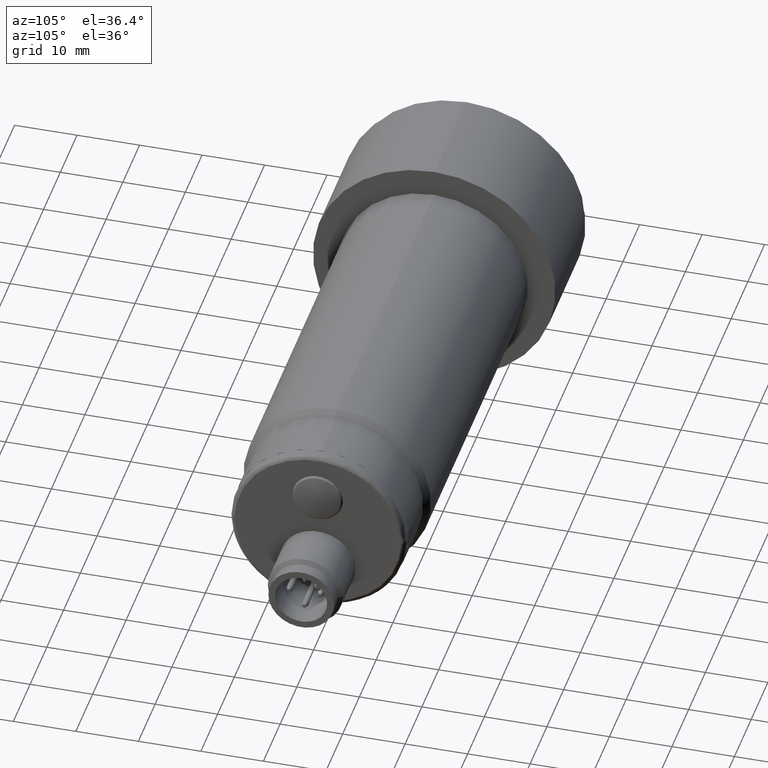
[diagram: clean part render]
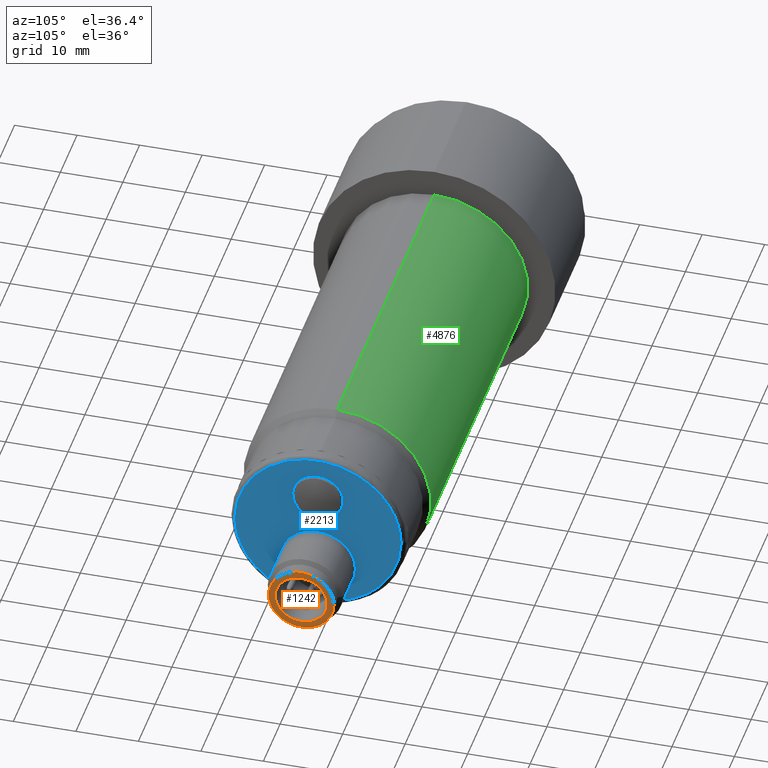
[diagram: same view with three faces highlighted in distinct colors, each labeled with its STEP entity id]
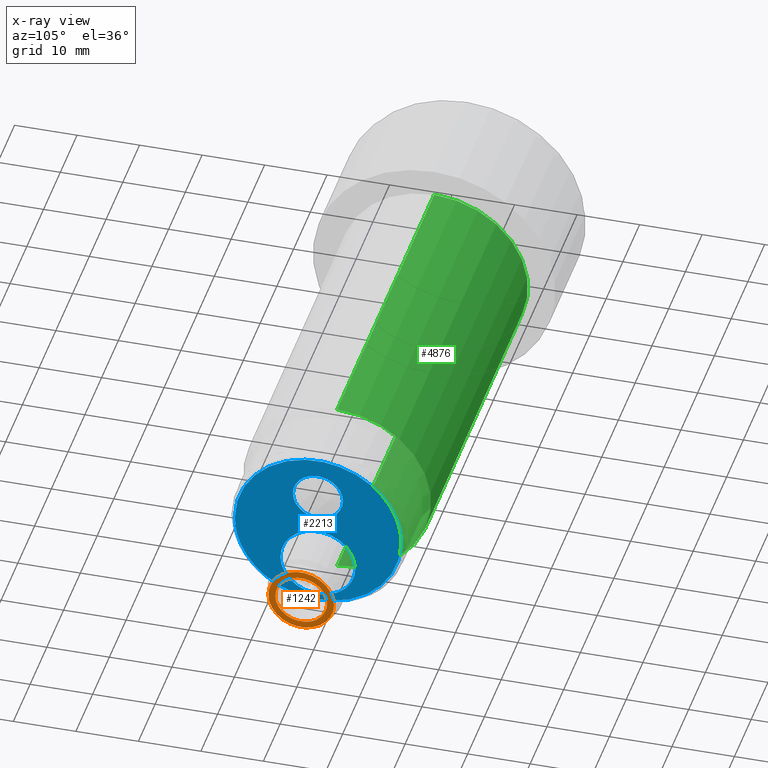
[diagram: x-ray of the same camera — body ghosted, the three highlighted faces saturated]
A machine part, auxiliary view with three faces highlighted in distinct colors.
The next image is the same camera in x-ray (body ghosted, the three faces saturated) — at least one of them is partly hidden behind the body in this view.
Their STEP definitions:

[orange] entity #1242 — the highlighted planar face has unit normal (-1, -0, 0).
#16 = ORIENTED_EDGE ( 'NONE', *, *, #1738, .F. ) ;
#281 = DIRECTION ( 'NONE',  ( -1.000000000000000000, -1.516643953282580000E-016, -0.0000000000000000000 ) ) ;
#331 = DIRECTION ( 'NONE',  ( 1.516643953282580000E-016, -1.000000000000000000, 0.0000000000000000000 ) ) ;
#793 = CARTESIAN_POINT ( 'NONE',  ( 3.834645669291338900, -6.420568432234330000E-017, -0.2448812989876958100 ) ) ;
#881 = CARTESIAN_POINT ( 'NONE',  ( 3.834645669291338900, 2.985926738649020400E-018, -0.2448812989876958100 ) ) ;
#1083 = ORIENTED_EDGE ( 'NONE', *, *, #3479, .F. ) ;
#1103 = CIRCLE ( 'NONE', #3405, 0.1633858267716535600 ) ;
#1111 = FACE_BOUND ( 'NONE', #3746, .T. ) ;
#1226 = CARTESIAN_POINT ( 'NONE',  ( 3.834645669291338900, -0.2066929133858267900, -0.2448812989876958100 ) ) ;
#1242 = ADVANCED_FACE ( 'NONE', ( #1111, #3185 ), #1849, .F. ) ;
#1459 = ORIENTED_EDGE ( 'NONE', *, *, #3248, .F. ) ;
#1638 = AXIS2_PLACEMENT_3D ( 'NONE', #2649, #281, #2198 ) ;
#1679 = DIRECTION ( 'NONE',  ( 0.0000000000000000000, -1.000000000000000000, 0.0000000000000000000 ) ) ;
#1738 = EDGE_CURVE ( 'NONE', #4264, #3059, #3169, .T. ) ;
#1849 = PLANE ( 'NONE',  #4183 ) ;
#1933 = CARTESIAN_POINT ( 'NONE',  ( 3.834645669291338900, 0.2066929133858267900, -0.2448812989876957600 ) ) ;
#1962 = CARTESIAN_POINT ( 'NONE',  ( 3.834645669291338900, -0.1633858267716536100, -0.2448812989876958100 ) ) ;
#2046 = DIRECTION ( 'NONE',  ( 0.0000000000000000000, -1.000000000000000000, 0.0000000000000000000 ) ) ;
#2140 = ORIENTED_EDGE ( 'NONE', *, *, #2188, .F. ) ;
#2188 = EDGE_CURVE ( 'NONE', #3982, #4758, #4646, .T. ) ;
#2198 = DIRECTION ( 'NONE',  ( 0.0000000000000000000, -1.000000000000000000, 0.0000000000000000000 ) ) ;
#2372 = AXIS2_PLACEMENT_3D ( 'NONE', #881, #4784, #2046 ) ;
#2520 = DIRECTION ( 'NONE',  ( 1.000000000000000000, 1.516643953282580000E-016, 0.0000000000000000000 ) ) ;
#2649 = CARTESIAN_POINT ( 'NONE',  ( 3.834645669291338900, 2.985926738649020400E-018, -0.2448812989876958100 ) ) ;
#2662 = CARTESIAN_POINT ( 'NONE',  ( 3.834645669291338900, 1.181638770018493700E-016, -0.3967475104160477800 ) ) ;
#2721 = DIRECTION ( 'NONE',  ( 0.0000000000000000000, -1.000000000000000000, 0.0000000000000000000 ) ) ;
#3059 = VERTEX_POINT ( 'NONE', #1962 ) ;
#3169 = CIRCLE ( 'NONE', #4112, 0.1633858267716535600 ) ;
#3185 = FACE_OUTER_BOUND ( 'NONE', #4750, .T. ) ;
#3248 = EDGE_CURVE ( 'NONE', #4758, #3982, #3497, .T. ) ;
#3405 = AXIS2_PLACEMENT_3D ( 'NONE', #4474, #2520, #1679 ) ;
#3479 = EDGE_CURVE ( 'NONE', #3059, #4264, #1103, .T. ) ;
#3497 = CIRCLE ( 'NONE', #2372, 0.2066929133858267900 ) ;
#3746 = EDGE_LOOP ( 'NONE', ( #1083, #16 ) ) ;
#3982 = VERTEX_POINT ( 'NONE', #1226 ) ;
#4112 = AXIS2_PLACEMENT_3D ( 'NONE', #793, #4730, #2721 ) ;
#4183 = AXIS2_PLACEMENT_3D ( 'NONE', #2662, #4638, #331 ) ;
#4264 = VERTEX_POINT ( 'NONE', #4667 ) ;
#4474 = CARTESIAN_POINT ( 'NONE',  ( 3.834645669291338900, -6.420568432234330000E-017, -0.2448812989876958100 ) ) ;
#4638 = DIRECTION ( 'NONE',  ( -1.000000000000000000, -1.516643953282580000E-016, 0.0000000000000000000 ) ) ;
#4646 = CIRCLE ( 'NONE', #1638, 0.2066929133858267900 ) ;
#4667 = CARTESIAN_POINT ( 'NONE',  ( 3.834645669291338900, 0.1633858267716534800, -0.2448812989876957600 ) ) ;
#4730 = DIRECTION ( 'NONE',  ( 1.000000000000000000, 1.516643953282580000E-016, 0.0000000000000000000 ) ) ;
#4750 = EDGE_LOOP ( 'NONE', ( #2140, #1459 ) ) ;
#4758 = VERTEX_POINT ( 'NONE', #1933 ) ;
#4784 = DIRECTION ( 'NONE',  ( -1.000000000000000000, -1.516643953282580000E-016, -0.0000000000000000000 ) ) ;

[blue] entity #2213 — the highlighted planar face has unit normal (-1, -0, 0).
#72 = CIRCLE ( 'NONE', #2629, 0.2362204724409449100 ) ;
#168 = VERTEX_POINT ( 'NONE', #1749 ) ;
#321 = CARTESIAN_POINT ( 'NONE',  ( 3.440944881889763400, 1.966930555438306800E-018, -0.005708070641239057500 ) ) ;
#460 = EDGE_LOOP ( 'NONE', ( #1514, #3403 ) ) ;
#613 = VERTEX_POINT ( 'NONE', #3027 ) ;
#770 = CARTESIAN_POINT ( 'NONE',  ( 3.440944881889763900, -0.5236220472440945600, 1.047244094488188400 ) ) ;
#790 = ORIENTED_EDGE ( 'NONE', *, *, #3842, .F. ) ;
#825 = AXIS2_PLACEMENT_3D ( 'NONE', #2993, #1002, #4198 ) ;
#894 = AXIS2_PLACEMENT_3D ( 'NONE', #1979, #4297, #4688 ) ;
#973 = FACE_BOUND ( 'NONE', #3702, .T. ) ;
#1002 = DIRECTION ( 'NONE',  ( 1.000000000000000000, 1.627535114893099900E-016, -0.0000000000000000000 ) ) ;
#1056 = CARTESIAN_POINT ( 'NONE',  ( 3.440944881889763400, -0.2362204724409449900, -0.2448812989876957600 ) ) ;
#1107 = DIRECTION ( 'NONE',  ( 0.0000000000000000000, 1.000000000000000000, 0.0000000000000000000 ) ) ;
#1120 = CARTESIAN_POINT ( 'NONE',  ( 3.440944881889763900, 0.5236220472440946700, -1.047244094488189300 ) ) ;
#1228 = EDGE_CURVE ( 'NONE', #2773, #2193, #72, .T. ) ;
#1267 = DIRECTION ( 'NONE',  ( 0.0000000000000000000, -1.000000000000000000, 0.0000000000000000000 ) ) ;
#1439 = DIRECTION ( 'NONE',  ( -1.000000000000000000, -1.627535114893099900E-016, 0.0000000000000000000 ) ) ;
#1514 = ORIENTED_EDGE ( 'NONE', *, *, #2336, .F. ) ;
#1523 = CARTESIAN_POINT ( 'NONE',  ( 3.440944881889763900, -0.5236220472440945600, -5.140889730264691300E-016 ) ) ;
#1749 = CARTESIAN_POINT ( 'NONE',  ( 3.440944881889763400, -0.1574803149606302000, 0.2501974411697841500 ) ) ;
#1822 = CARTESIAN_POINT ( 'NONE',  ( 3.440944881889763400, 0.2362204724409448200, -0.2448812989876958100 ) ) ;
#1968 =( BOUNDED_CURVE ( )  B_SPLINE_CURVE ( 3, ( #3891, #1120, #3874, #1523 ),
 .UNSPECIFIED., .F., .F. ) 
 B_SPLINE_CURVE_WITH_KNOTS ( ( 4, 4 ),
 ( 0.5000000000000000000, 1.000000000000000000 ),
 .UNSPECIFIED. ) 
 CURVE ( )  GEOMETRIC_REPRESENTATION_ITEM ( )  RATIONAL_B_SPLINE_CURVE ( ( 1.000000000000000000, 0.3333333333333333700, 0.3333333333333333700, 1.000000000000000000 ) ) 
 REPRESENTATION_ITEM ( '' )  );
#1979 = CARTESIAN_POINT ( 'NONE',  ( 3.440944881889763400, -2.844659063942689200E-016, 0.2501974411697841500 ) ) ;
#1987 = FACE_OUTER_BOUND ( 'NONE', #460, .T. ) ;
#2193 = VERTEX_POINT ( 'NONE', #1822 ) ;
#2213 = ADVANCED_FACE ( 'NONE', ( #1987, #973, #2304 ), #4973, .F. ) ;
#2304 = FACE_BOUND ( 'NONE', #2788, .T. ) ;
#2336 = EDGE_CURVE ( 'NONE', #613, #3576, #3100, .T. ) ;
#2534 = EDGE_CURVE ( 'NONE', #4872, #168, #3337, .T. ) ;
#2581 = CARTESIAN_POINT ( 'NONE',  ( 3.440944881889763900, -0.5236220472440945600, -5.140889730264691300E-016 ) ) ;
#2629 = AXIS2_PLACEMENT_3D ( 'NONE', #3447, #5039, #1107 ) ;
#2724 = ORIENTED_EDGE ( 'NONE', *, *, #1228, .F. ) ;
#2733 = ORIENTED_EDGE ( 'NONE', *, *, #2534, .F. ) ;
#2773 = VERTEX_POINT ( 'NONE', #1056 ) ;
#2788 = EDGE_LOOP ( 'NONE', ( #790, #2733 ) ) ;
#2980 = EDGE_CURVE ( 'NONE', #2193, #2773, #4674, .T. ) ;
#2993 = CARTESIAN_POINT ( 'NONE',  ( 3.440944881889763400, -5.672446512286974300E-017, -0.2448812989876958100 ) ) ;
#3027 = CARTESIAN_POINT ( 'NONE',  ( 3.440944881889763900, -0.5236220472440945600, -5.140889730264691300E-016 ) ) ;
#3100 =( BOUNDED_CURVE ( )  B_SPLINE_CURVE ( 3, ( #2581, #770, #5025, #3506 ),
 .UNSPECIFIED., .F., .F. ) 
 B_SPLINE_CURVE_WITH_KNOTS ( ( 4, 4 ),
 ( 0.0000000000000000000, 0.5000000000000000000 ),
 .UNSPECIFIED. ) 
 CURVE ( )  GEOMETRIC_REPRESENTATION_ITEM ( )  RATIONAL_B_SPLINE_CURVE ( ( 1.000000000000000000, 0.3333333333333333700, 0.3333333333333333700, 1.000000000000000000 ) ) 
 REPRESENTATION_ITEM ( '' )  );
#3334 = ORIENTED_EDGE ( 'NONE', *, *, #2980, .F. ) ;
#3337 = CIRCLE ( 'NONE', #4737, 0.1574803149606299200 ) ;
#3403 = ORIENTED_EDGE ( 'NONE', *, *, #4236, .F. ) ;
#3447 = CARTESIAN_POINT ( 'NONE',  ( 3.440944881889763400, -5.672446512286974300E-017, -0.2448812989876958100 ) ) ;
#3506 = CARTESIAN_POINT ( 'NONE',  ( 3.440944881889763900, 0.5236220472440945600, -4.500125261446927200E-016 ) ) ;
#3576 = VERTEX_POINT ( 'NONE', #3716 ) ;
#3584 = CARTESIAN_POINT ( 'NONE',  ( 3.440944881889763400, 0.1574803149606296700, 0.2501974411697841500 ) ) ;
#3657 = DIRECTION ( 'NONE',  ( 1.000000000000000000, 1.627535114893099900E-016, 0.0000000000000000000 ) ) ;
#3702 = EDGE_LOOP ( 'NONE', ( #3334, #2724 ) ) ;
#3716 = CARTESIAN_POINT ( 'NONE',  ( 3.440944881889763900, 0.5236220472440945600, -4.500125261446927200E-016 ) ) ;
#3788 = CIRCLE ( 'NONE', #894, 0.1574803149606299200 ) ;
#3842 = EDGE_CURVE ( 'NONE', #168, #4872, #3788, .T. ) ;
#3874 = CARTESIAN_POINT ( 'NONE',  ( 3.440944881889763900, -0.5236220472440945600, -1.047244094488189600 ) ) ;
#3891 = CARTESIAN_POINT ( 'NONE',  ( 3.440944881889763900, 0.5236220472440945600, -4.500125261446927200E-016 ) ) ;
#4071 = CARTESIAN_POINT ( 'NONE',  ( 3.440944881889763400, -2.844659063942689200E-016, 0.2501974411697841500 ) ) ;
#4198 = DIRECTION ( 'NONE',  ( 0.0000000000000000000, 1.000000000000000000, 0.0000000000000000000 ) ) ;
#4236 = EDGE_CURVE ( 'NONE', #3576, #613, #1968, .T. ) ;
#4297 = DIRECTION ( 'NONE',  ( 1.000000000000000000, 1.627535114893099900E-016, 0.0000000000000000000 ) ) ;
#4312 = AXIS2_PLACEMENT_3D ( 'NONE', #321, #1439, #4938 ) ;
#4674 = CIRCLE ( 'NONE', #825, 0.2362204724409449100 ) ;
#4688 = DIRECTION ( 'NONE',  ( 0.0000000000000000000, -1.000000000000000000, 0.0000000000000000000 ) ) ;
#4737 = AXIS2_PLACEMENT_3D ( 'NONE', #4071, #3657, #1267 ) ;
#4872 = VERTEX_POINT ( 'NONE', #3584 ) ;
#4938 = DIRECTION ( 'NONE',  ( 1.627535114893099900E-016, -1.000000000000000000, 0.0000000000000000000 ) ) ;
#4973 = PLANE ( 'NONE',  #4312 ) ;
#5025 = CARTESIAN_POINT ( 'NONE',  ( 3.440944881889763900, 0.5236220472440944500, 1.047244094488188400 ) ) ;
#5039 = DIRECTION ( 'NONE',  ( 1.000000000000000000, 1.627535114893099900E-016, -0.0000000000000000000 ) ) ;

[green] entity #4876 — the highlighted cylindrical surface (partial cylindrical patch) has radius 15 mm, axis along (1, -0, -0).
#525 = DIRECTION ( 'NONE',  ( 0.0000000000000000000, 0.0000000000000000000, -1.000000000000000000 ) ) ;
#732 = CYLINDRICAL_SURFACE ( 'NONE', #3150, 0.5905511811023621500 ) ;
#759 = VERTEX_POINT ( 'NONE', #4705 ) ;
#780 = CARTESIAN_POINT ( 'NONE',  ( 0.7086614173228346100, 0.0000000000000000000, -0.5905511811023623800 ) ) ;
#986 = DIRECTION ( 'NONE',  ( 0.0000000000000000000, 0.0000000000000000000, -1.000000000000000000 ) ) ;
#1054 = EDGE_CURVE ( 'NONE', #2745, #3829, #3018, .T. ) ;
#1137 = AXIS2_PLACEMENT_3D ( 'NONE', #4673, #1517, #4279 ) ;
#1243 = DIRECTION ( 'NONE',  ( 1.000000000000000000, -0.0000000000000000000, -1.524659305057740100E-016 ) ) ;
#1262 = CARTESIAN_POINT ( 'NONE',  ( 4.031496062992125900, 0.0000000000000000000, -6.146657985744568100E-016 ) ) ;
#1281 = AXIS2_PLACEMENT_3D ( 'NONE', #3342, #3701, #986 ) ;
#1341 = EDGE_CURVE ( 'NONE', #3829, #759, #4551, .T. ) ;
#1403 = EDGE_CURVE ( 'NONE', #4321, #759, #4779, .T. ) ;
#1517 = DIRECTION ( 'NONE',  ( 1.000000000000000000, -0.0000000000000000000, -1.524659305057740100E-016 ) ) ;
#2317 = ORIENTED_EDGE ( 'NONE', *, *, #3860, .T. ) ;
#2481 = DIRECTION ( 'NONE',  ( 1.000000000000000000, -0.0000000000000000000, -1.524659305057740100E-016 ) ) ;
#2513 = CARTESIAN_POINT ( 'NONE',  ( 0.7086614173228348300, 7.232166136696968800E-017, 0.5905511811023620400 ) ) ;
#2541 = ORIENTED_EDGE ( 'NONE', *, *, #1403, .F. ) ;
#2745 = VERTEX_POINT ( 'NONE', #2513 ) ;
#2817 = VECTOR ( 'NONE', #3499, 39.37007874015748100 ) ;
#2877 = ORIENTED_EDGE ( 'NONE', *, *, #1341, .T. ) ;
#3018 = LINE ( 'NONE', #3748, #3696 ) ;
#3150 = AXIS2_PLACEMENT_3D ( 'NONE', #1262, #1243, #525 ) ;
#3342 = CARTESIAN_POINT ( 'NONE',  ( 2.988188976377953200, 0.0000000000000000000, -4.555970128105587500E-016 ) ) ;
#3441 = EDGE_LOOP ( 'NONE', ( #2317, #3904, #2877, #2541 ) ) ;
#3499 = DIRECTION ( 'NONE',  ( 1.000000000000000000, -0.0000000000000000000, -1.524659305057740100E-016 ) ) ;
#3652 = FACE_OUTER_BOUND ( 'NONE', #3441, .T. ) ;
#3696 = VECTOR ( 'NONE', #2481, 39.37007874015748100 ) ;
#3701 = DIRECTION ( 'NONE',  ( -1.000000000000000000, 0.0000000000000000000, 1.524659305057740100E-016 ) ) ;
#3748 = CARTESIAN_POINT ( 'NONE',  ( 4.031496062992125900, 7.232166136696967600E-017, 0.5905511811023616000 ) ) ;
#3829 = VERTEX_POINT ( 'NONE', #4738 ) ;
#3860 = EDGE_CURVE ( 'NONE', #4321, #2745, #4651, .T. ) ;
#3904 = ORIENTED_EDGE ( 'NONE', *, *, #1054, .T. ) ;
#4279 = DIRECTION ( 'NONE',  ( -2.312964634635743000E-016, 0.0000000000000000000, -1.000000000000000000 ) ) ;
#4321 = VERTEX_POINT ( 'NONE', #780 ) ;
#4551 = CIRCLE ( 'NONE', #1281, 0.5905511811023621500 ) ;
#4651 = CIRCLE ( 'NONE', #1137, 0.5905511811023621500 ) ;
#4673 = CARTESIAN_POINT ( 'NONE',  ( 0.7086614173228347200, 0.0000000000000000000, -1.080467224056643500E-016 ) ) ;
#4675 = CARTESIAN_POINT ( 'NONE',  ( 4.031496062992125900, 0.0000000000000000000, -0.5905511811023628200 ) ) ;
#4705 = CARTESIAN_POINT ( 'NONE',  ( 2.988188976377953200, 7.232166136696970100E-017, -0.5905511811023628200 ) ) ;
#4738 = CARTESIAN_POINT ( 'NONE',  ( 2.988188976377953200, 0.0000000000000000000, 0.5905511811023618200 ) ) ;
#4779 = LINE ( 'NONE', #4675, #2817 ) ;
#4876 = ADVANCED_FACE ( 'NONE', ( #3652 ), #732, .T. ) ;